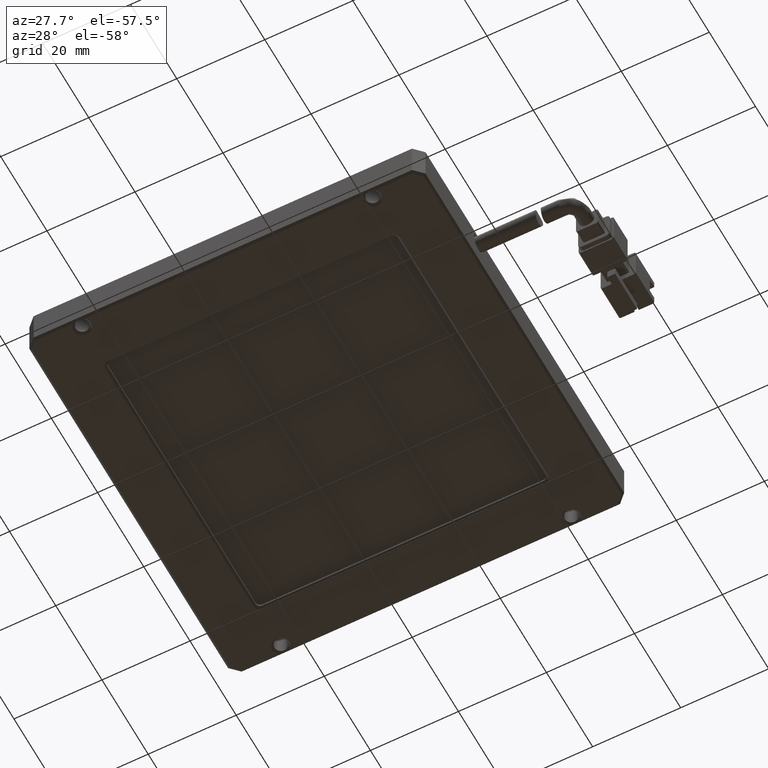
[diagram: clean part render]
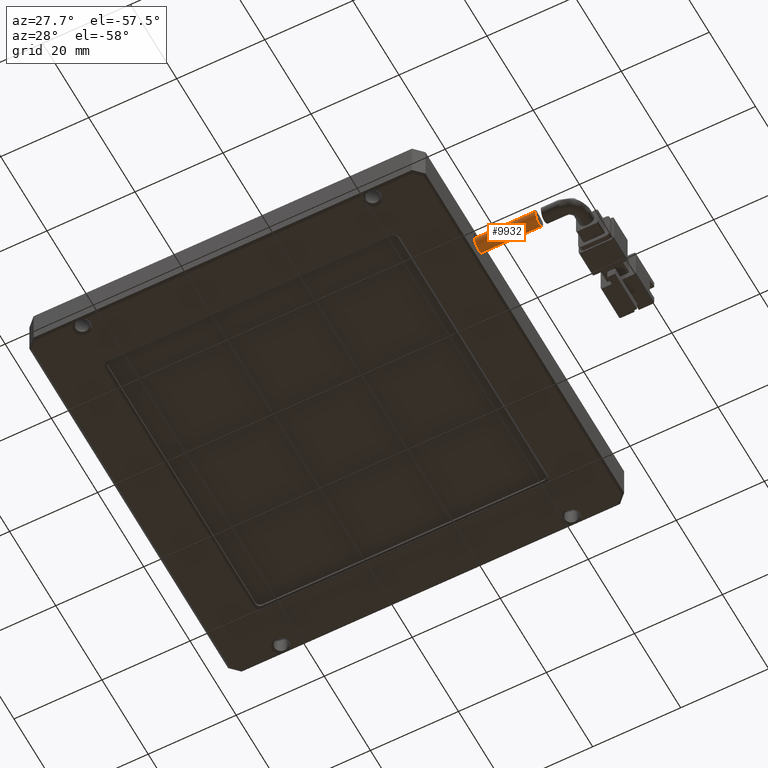
[diagram: same view with one face highlighted and labeled with its STEP entity id]
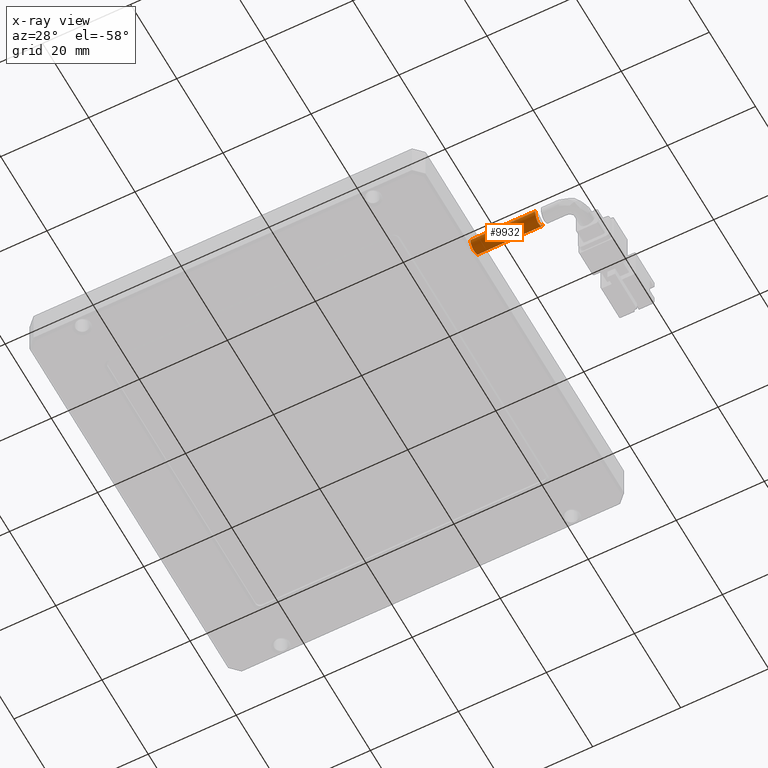
[diagram: x-ray of the same camera — body ghosted, the highlighted face saturated]
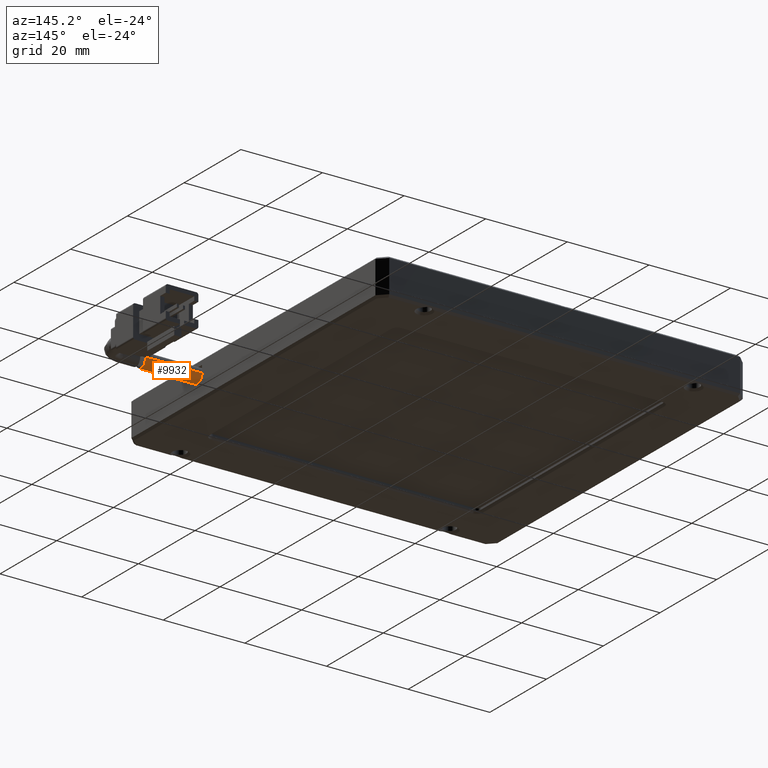
[diagram: same view with one face highlighted and labeled with its STEP entity id]
A machine part, auxiliary view. The second image highlights one B-rep face of the part: STEP entity #9932.
The next image is the same camera in x-ray: the body ghosted, the highlighted face saturated — about 0% of this face is hidden behind the body in this view.
A second angle (auxiliary view) of the same face is appended — the face is thin or edge-on in the first view.
In plain terms, the highlighted cylindrical surface (edge-blend (fillet) strip) has radius 1.75 mm, axis along (-1, 0, -0).
Its self-contained STEP definition (entity closure, byte-faithful):
#395 = CARTESIAN_POINT ( 'NONE',  ( 31.92074074074073700, 7.940000000000009300, 2.800000000000004700 ) ) ;
#434 = CARTESIAN_POINT ( 'NONE',  ( 31.92074074074073700, 6.190000000000011000, 2.800000000000005600 ) ) ;
#497 = CARTESIAN_POINT ( 'NONE',  ( 31.92074074074073700, 9.690000000000008400, 2.800000000000003800 ) ) ;
#567 = EDGE_CURVE ( 'NONE', #4735, #10825, #5714, .T. ) ;
#860 = CARTESIAN_POINT ( 'NONE',  ( 26.66100286557081800, 9.678567026092359500, 2.569916528673476200 ) ) ;
#1088 = VERTEX_POINT ( 'NONE', #5726 ) ;
#1205 = CIRCLE ( 'NONE', #17312, 1.749999999999998000 ) ;
#1488 = VECTOR ( 'NONE', #1899, 1000.000000000000000 ) ;
#1899 = DIRECTION ( 'NONE',  ( -1.000000000000000000, 9.566035693696577100E-017, -2.339027312099227300E-016 ) ) ;
#1937 = VECTOR ( 'NONE', #14278, 1000.000000000000000 ) ;
#2188 = AXIS2_PLACEMENT_3D ( 'NONE', #395, #7415, #6094 ) ;
#3327 = CARTESIAN_POINT ( 'NONE',  ( 26.57371321200740500, 9.331868387806672200, 1.733124883886461000 ) ) ;
#4380 = EDGE_CURVE ( 'NONE', #6077, #4735, #6201, .T. ) ;
#4735 = VERTEX_POINT ( 'NONE', #5014 ) ;
#5014 = CARTESIAN_POINT ( 'NONE',  ( 26.70158067323804800, 6.190000000000011900, 2.800000000000004300 ) ) ;
#5381 = DIRECTION ( 'NONE',  ( 1.000000000000000000, -9.566035693696577100E-017, 2.339027312099227300E-016 ) ) ;
#5714 = LINE ( 'NONE', #434, #1937 ) ;
#5726 = CARTESIAN_POINT ( 'NONE',  ( 11.92074074074077700, 9.690000000000011900, 2.799999999999998900 ) ) ;
#6016 = ORIENTED_EDGE ( 'NONE', *, *, #4380, .T. ) ;
#6077 = VERTEX_POINT ( 'NONE', #7254 ) ;
#6094 = DIRECTION ( 'NONE',  ( 0.0000000000000000000, 1.000000000000000000, -4.956352788505169200E-016 ) ) ;
#6201 = B_SPLINE_CURVE_WITH_KNOTS ( 'NONE', 3,
 ( #17839, #17961, #860, #17788, #17724, #17656, #17551, #3327, #17487, #17425, #17375, #17316, #17252, #17137, #17000, #16817, #16728, #16690, #7585, #16666, #16626, #16596, #16525, #16465, #16350, #16286 ),
 .UNSPECIFIED., .F., .F.,
 ( 4, 2, 2, 2, 2, 2, 2, 2, 2, 2, 2, 2, 4 ),
 ( 0.005490571999675029000, 0.005833718808239115300, 0.006176865616803200700, 0.006520012425367286900, 0.006863159233931373200, 0.007549452851059542200, 0.008235746468187712900, 0.008578893276751797500, 0.008922040085315882000, 0.009608333702444047500, 0.009951480511008130300, 0.01029462731957221100, 0.01098092093670037900 ),
 .UNSPECIFIED. ) ;
#6345 = EDGE_LOOP ( 'NONE', ( #6016, #8365, #9056, #9858 ) ) ;
#6432 = CYLINDRICAL_SURFACE ( 'NONE', #2188, 1.749999999999998000 ) ;
#7254 = CARTESIAN_POINT ( 'NONE',  ( 26.66446017990106300, 9.690000000000008400, 2.800000000000002500 ) ) ;
#7415 = DIRECTION ( 'NONE',  ( -1.000000000000000000, 9.566035693696577100E-017, -2.339027312099227300E-016 ) ) ;
#7585 = CARTESIAN_POINT ( 'NONE',  ( 26.57936897710910200, 6.866247011005096800, 1.399225859134227700 ) ) ;
#8102 = CARTESIAN_POINT ( 'NONE',  ( 11.92074074074077700, 6.190000000000014600, 2.800000000000002500 ) ) ;
#8365 = ORIENTED_EDGE ( 'NONE', *, *, #567, .T. ) ;
#9056 = ORIENTED_EDGE ( 'NONE', *, *, #16033, .T. ) ;
#9385 = LINE ( 'NONE', #497, #1488 ) ;
#9858 = ORIENTED_EDGE ( 'NONE', *, *, #15482, .F. ) ;
#9932 = ADVANCED_FACE ( 'NONE', ( #15055 ), #6432, .T. ) ;
#10825 = VERTEX_POINT ( 'NONE', #8102 ) ;
#13672 = CARTESIAN_POINT ( 'NONE',  ( 11.92074074074077700, 7.940000000000012800, 2.799999999999999800 ) ) ;
#14278 = DIRECTION ( 'NONE',  ( -1.000000000000000000, 9.566035693696577100E-017, -2.339027312099227300E-016 ) ) ;
#15055 = FACE_OUTER_BOUND ( 'NONE', #6345, .T. ) ;
#15057 = DIRECTION ( 'NONE',  ( 0.0000000000000000000, 1.000000000000000000, -1.486905836551550700E-015 ) ) ;
#15482 = EDGE_CURVE ( 'NONE', #6077, #1088, #9385, .T. ) ;
#16033 = EDGE_CURVE ( 'NONE', #10825, #1088, #1205, .T. ) ;
#16286 = CARTESIAN_POINT ( 'NONE',  ( 26.70158067323804800, 6.190000000000011900, 2.800000000000004300 ) ) ;
#16350 = CARTESIAN_POINT ( 'NONE',  ( 26.70158067323804500, 6.190000000000009300, 2.567903630600322000 ) ) ;
#16465 = CARTESIAN_POINT ( 'NONE',  ( 26.69204154598544300, 6.236371002492884200, 2.338953196826496900 ) ) ;
#16525 = CARTESIAN_POINT ( 'NONE',  ( 26.66649596013071000, 6.368325247849554700, 2.021898173489210700 ) ) ;
#16596 = CARTESIAN_POINT ( 'NONE',  ( 26.65600229684663300, 6.423461903158515600, 1.919321677900535100 ) ) ;
#16626 = CARTESIAN_POINT ( 'NONE',  ( 26.63279320268441500, 6.550459385506572500, 1.730112628889967300 ) ) ;
#16666 = CARTESIAN_POINT ( 'NONE',  ( 26.61999519613541700, 6.622697505910162300, 1.642257559800926800 ) ) ;
#16690 = CARTESIAN_POINT ( 'NONE',  ( 26.55028544684186200, 7.058357090898453200, 1.270956853235417400 ) ) ;
#16728 = CARTESIAN_POINT ( 'NONE',  ( 26.51317731777405500, 7.376719096009637200, 1.139154909644198000 ) ) ;
#16817 = CARTESIAN_POINT ( 'NONE',  ( 26.50214393506203000, 7.485832448768531000, 1.106098874566718200 ) ) ;
#17000 = CARTESIAN_POINT ( 'NONE',  ( 26.48391448659467400, 7.710063515443474500, 1.061409076175330800 ) ) ;
#17137 = CARTESIAN_POINT ( 'NONE',  ( 26.47671090955969200, 7.826280525588910700, 1.049942497244540800 ) ) ;
#17252 = CARTESIAN_POINT ( 'NONE',  ( 26.46336018450304600, 8.170083385248272400, 1.050115671515170000 ) ) ;
#17312 = AXIS2_PLACEMENT_3D ( 'NONE', #13672, #5381, #15057 ) ;
#17316 = CARTESIAN_POINT ( 'NONE',  ( 26.46560536652479500, 8.401249470794486000, 1.096522956792580700 ) ) ;
#17375 = CARTESIAN_POINT ( 'NONE',  ( 26.49229893306494800, 8.822701302035410400, 1.271790746518041100 ) ) ;
#17425 = CARTESIAN_POINT ( 'NONE',  ( 26.51695905053570400, 9.017497944677948900, 1.402448616356787300 ) ) ;
#17487 = CARTESIAN_POINT ( 'NONE',  ( 26.55879973340286800, 9.258422260200266200, 1.643636879483790600 ) ) ;
#17551 = CARTESIAN_POINT ( 'NONE',  ( 26.60200606461987900, 9.458622056262461400, 1.922898425157616400 ) ) ;
#17656 = CARTESIAN_POINT ( 'NONE',  ( 26.61539935976228900, 9.512278302564402200, 2.023119164031236900 ) ) ;
#17724 = CARTESIAN_POINT ( 'NONE',  ( 26.63848613199285600, 9.600080550502342500, 2.234548446059113000 ) ) ;
#17788 = CARTESIAN_POINT ( 'NONE',  ( 26.64809028472969400, 9.633893315740696300, 2.345820362761307500 ) ) ;
#17839 = CARTESIAN_POINT ( 'NONE',  ( 26.66446017990106300, 9.690000000000008400, 2.800000000000002500 ) ) ;
#17961 = CARTESIAN_POINT ( 'NONE',  ( 26.66446017990107000, 9.690000000000011900, 2.683923733012486300 ) ) ;